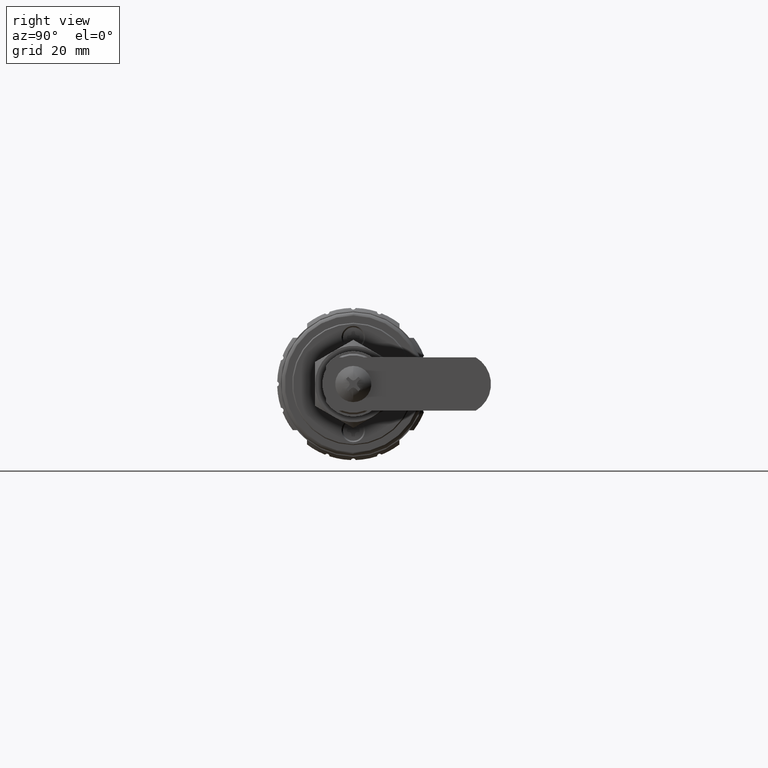
[diagram: clean part render]
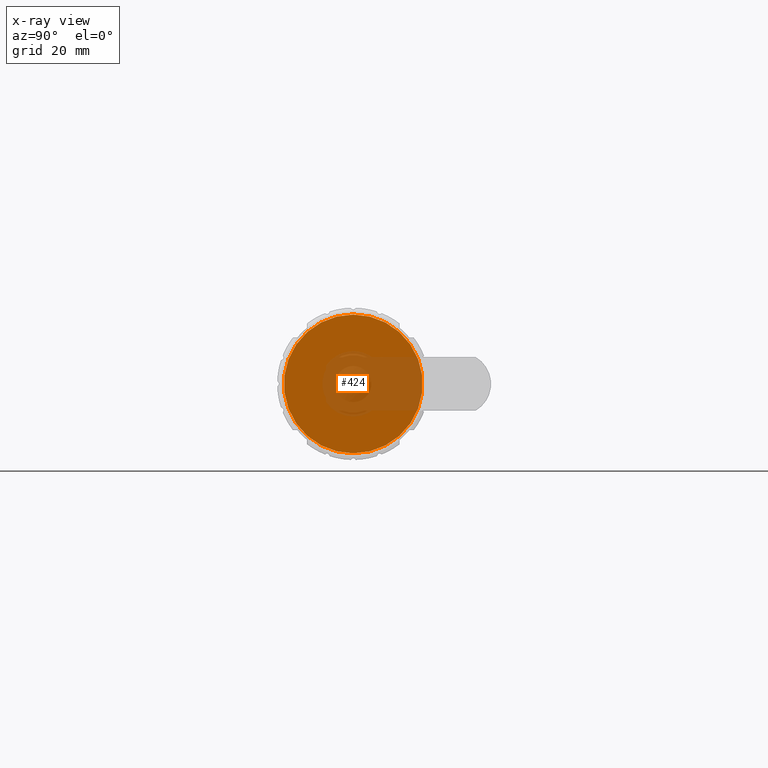
[diagram: x-ray — body ghosted, one internal face saturated and labeled with its STEP entity id]
A machine part, right view, then the same camera in x-ray: the body is ghosted and one INTERNAL B-rep face — a face not visible from any outside direction — is saturated and labeled: STEP entity #424.
In plain terms, the highlighted planar face has unit normal (1, 0, 0).
Its self-contained STEP definition (entity closure, byte-faithful):
#424=ADVANCED_FACE('',(#2331),#2330,.F.);
#2330=PLANE('',#4990);
#2331=FACE_OUTER_BOUND('',#4991,.T.);
#4987=CARTESIAN_POINT('',(-1.41063051550E+01,4.18809885270E+01,4.63450000000E+01));
#4988=DIRECTION('',(1.00000000000E+00,0.00000000000E+00,0.00000000000E+00));
#4989=DIRECTION('',(0.00000000000E+00,-1.00000000000E+00,0.00000000000E+00));
#4990=AXIS2_PLACEMENT_3D('',#4987,#4988,#4989);
#4991=EDGE_LOOP('',(#6884,#6885));
#6884=ORIENTED_EDGE('',*,*,#8211,.T.);
#6885=ORIENTED_EDGE('',*,*,#8212,.T.);
#8211=EDGE_CURVE('',#11885,#11886,#11887,.T.);
#8212=EDGE_CURVE('',#11886,#11885,#11893,.T.);
#11885=VERTEX_POINT('',#17300);
#11886=VERTEX_POINT('',#17301);
#11887=CIRCLE('',#17305,2.01500000000E+01);
#11893=CIRCLE('',#17309,2.01500000000E+01);
#17300=CARTESIAN_POINT('',(-1.41063051550E+01,2.12025952351E-11,-2.01500000000E+01));
#17301=CARTESIAN_POINT('',(-1.41063051550E+01,2.12049637109E-11,2.01500000000E+01));
#17302=CARTESIAN_POINT('',(-1.41063051550E+01,2.12025952351E-11,1.12265752250E-11));
#17303=DIRECTION('',(-1.00000000000E+00,0.00000000000E+00,-0.00000000000E+00));
#17304=DIRECTION('',(0.00000000000E+00,-1.22460635382E-16,-1.00000000000E+00));
#17305=AXIS2_PLACEMENT_3D('',#17302,#17303,#17304);
#17306=CARTESIAN_POINT('',(-1.41063051550E+01,2.12025952351E-11,1.12265752250E-11));
#17307=DIRECTION('',(-1.00000000000E+00,0.00000000000E+00,-0.00000000000E+00));
#17308=DIRECTION('',(0.00000000000E+00,-1.22460635382E-16,-1.00000000000E+00));
#17309=AXIS2_PLACEMENT_3D('',#17306,#17307,#17308);